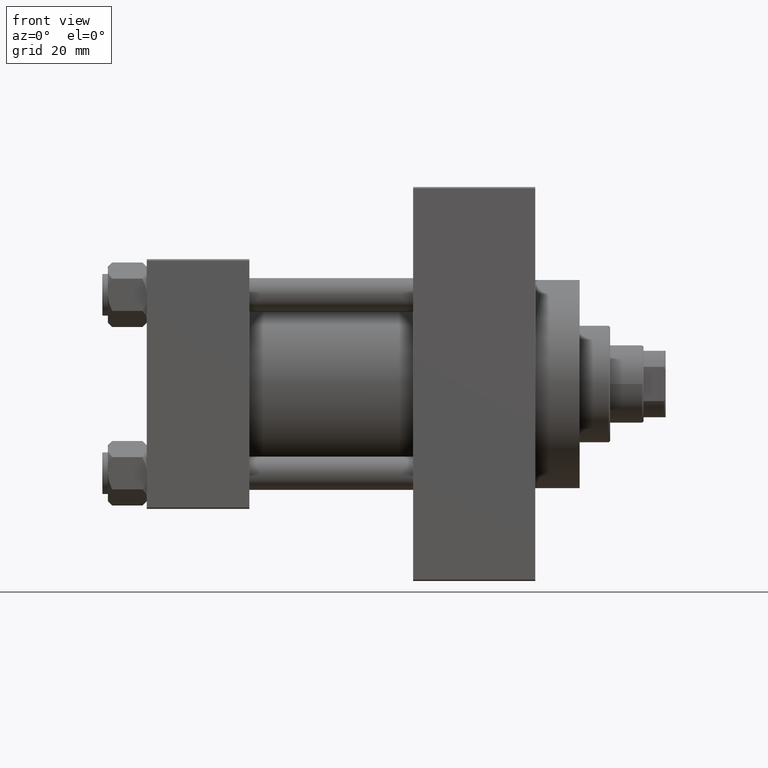
[diagram: clean part render]
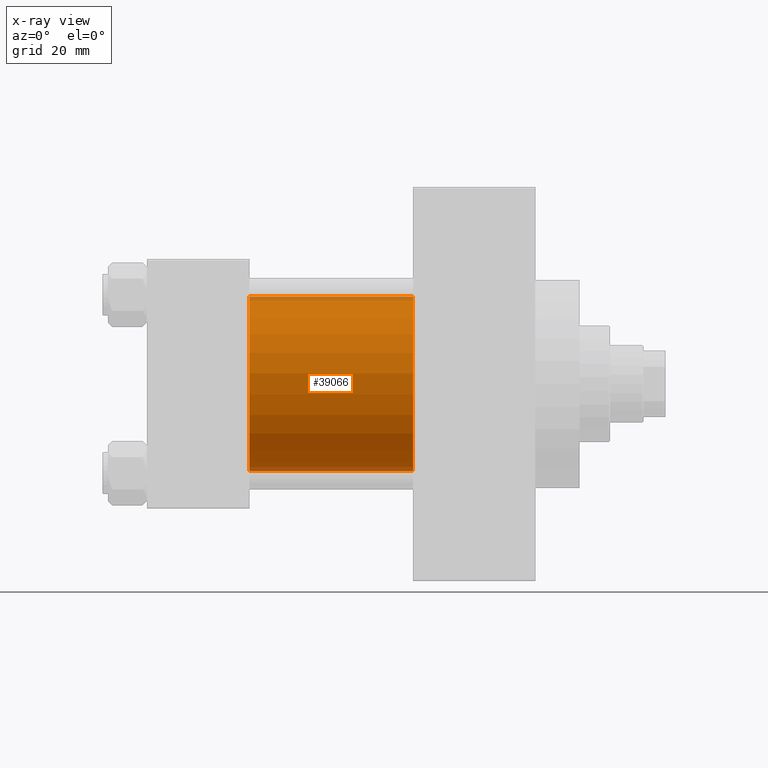
[diagram: x-ray — body ghosted, one internal face saturated and labeled with its STEP entity id]
A machine part, front view, then the same camera in x-ray: the body is ghosted and one INTERNAL B-rep face — a face not visible from any outside direction — is saturated and labeled: STEP entity #39066.
In plain terms, the highlighted cylindrical surface (partial cylindrical patch) has radius 31.5 mm, axis along (-1, -0, -0).
Its self-contained STEP definition (entity closure, byte-faithful):
#3898 = DIRECTION ( 'NONE',  ( 0.000000000000000000, 0.000000000000000000, -1.000000000000000000 ) ) ;
#4306 = ORIENTED_EDGE ( 'NONE', *, *, #37036, .F. ) ;
#6637 = ORIENTED_EDGE ( 'NONE', *, *, #42545, .F. ) ;
#7930 = DIRECTION ( 'NONE',  ( 0.000000000000000000, 0.000000000000000000, -1.000000000000000000 ) ) ;
#7970 = VERTEX_POINT ( 'NONE', #43284 ) ;
#8555 = ORIENTED_EDGE ( 'NONE', *, *, #29353, .T. ) ;
#9324 = CARTESIAN_POINT ( 'NONE',  ( 96.00000000000000000, 1.255552203348951850E-15, -31.50000000000000000 ) ) ;
#9903 = DIRECTION ( 'NONE',  ( -1.000000000000000000, -0.000000000000000000, -0.000000000000000000 ) ) ;
#10610 = AXIS2_PLACEMENT_3D ( 'NONE', #17413, #11168, #43201 ) ;
#11168 = DIRECTION ( 'NONE',  ( -1.000000000000000000, -0.000000000000000000, -0.000000000000000000 ) ) ;
#13724 = LINE ( 'NONE', #46206, #38669 ) ;
#14524 = FACE_OUTER_BOUND ( 'NONE', #19883, .T. ) ;
#15558 = CARTESIAN_POINT ( 'NONE',  ( 96.00000000000000000, -2.602085213965210642E-15, 0.000000000000000000 ) ) ;
#17413 = CARTESIAN_POINT ( 'NONE',  ( 96.00000000000000000, -2.602085213965210642E-15, 0.000000000000000000 ) ) ;
#17819 = CARTESIAN_POINT ( 'NONE',  ( 37.00000000000000000, 1.255552203348951850E-15, -31.50000000000000000 ) ) ;
#19883 = EDGE_LOOP ( 'NONE', ( #26611, #8555, #4306, #6637 ) ) ;
#19896 = EDGE_CURVE ( 'NONE', #7970, #23928, #32354, .T. ) ;
#22107 = CIRCLE ( 'NONE', #31930, 31.50000000000000000 ) ;
#22903 = VERTEX_POINT ( 'NONE', #41481 ) ;
#23105 = VERTEX_POINT ( 'NONE', #17819 ) ;
#23928 = VERTEX_POINT ( 'NONE', #9324 ) ;
#24909 = DIRECTION ( 'NONE',  ( 1.000000000000000000, 0.000000000000000000, 0.000000000000000000 ) ) ;
#25037 = DIRECTION ( 'NONE',  ( -1.000000000000000000, -0.000000000000000000, -0.000000000000000000 ) ) ;
#26611 = ORIENTED_EDGE ( 'NONE', *, *, #19896, .T. ) ;
#29353 = EDGE_CURVE ( 'NONE', #23928, #23105, #13724, .T. ) ;
#31930 = AXIS2_PLACEMENT_3D ( 'NONE', #36605, #24909, #3898 ) ;
#32354 = CIRCLE ( 'NONE', #36181, 31.50000000000000000 ) ;
#35117 = LINE ( 'NONE', #40326, #46596 ) ;
#36181 = AXIS2_PLACEMENT_3D ( 'NONE', #15558, #44691, #7930 ) ;
#36605 = CARTESIAN_POINT ( 'NONE',  ( 37.00000000000000000, -2.602085213965210642E-15, 0.000000000000000000 ) ) ;
#37036 = EDGE_CURVE ( 'NONE', #22903, #23105, #22107, .T. ) ;
#38669 = VECTOR ( 'NONE', #9903, 1000.000000000000000 ) ;
#39066 = ADVANCED_FACE ( 'NONE', ( #14524 ), #47216, .F. ) ;
#40326 = CARTESIAN_POINT ( 'NONE',  ( 96.00000000000000000, -2.602085213965210642E-15, 31.50000000000000000 ) ) ;
#41481 = CARTESIAN_POINT ( 'NONE',  ( 37.00000000000000000, -2.602085213965210642E-15, 31.50000000000000000 ) ) ;
#42545 = EDGE_CURVE ( 'NONE', #7970, #22903, #35117, .T. ) ;
#43201 = DIRECTION ( 'NONE',  ( 0.000000000000000000, 0.000000000000000000, 1.000000000000000000 ) ) ;
#43284 = CARTESIAN_POINT ( 'NONE',  ( 96.00000000000000000, -2.602085213965210642E-15, 31.50000000000000000 ) ) ;
#44691 = DIRECTION ( 'NONE',  ( 1.000000000000000000, 0.000000000000000000, 0.000000000000000000 ) ) ;
#46206 = CARTESIAN_POINT ( 'NONE',  ( 96.00000000000000000, 1.255552203348951850E-15, -31.50000000000000000 ) ) ;
#46596 = VECTOR ( 'NONE', #25037, 1000.000000000000000 ) ;
#47216 = CYLINDRICAL_SURFACE ( 'NONE', #10610, 31.50000000000000000 ) ;